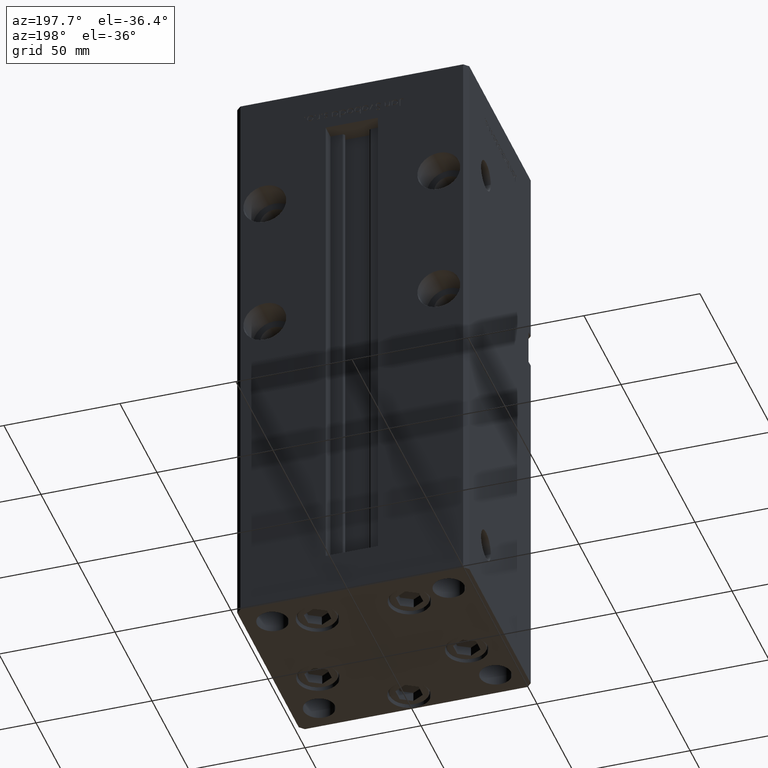
[diagram: clean part render]
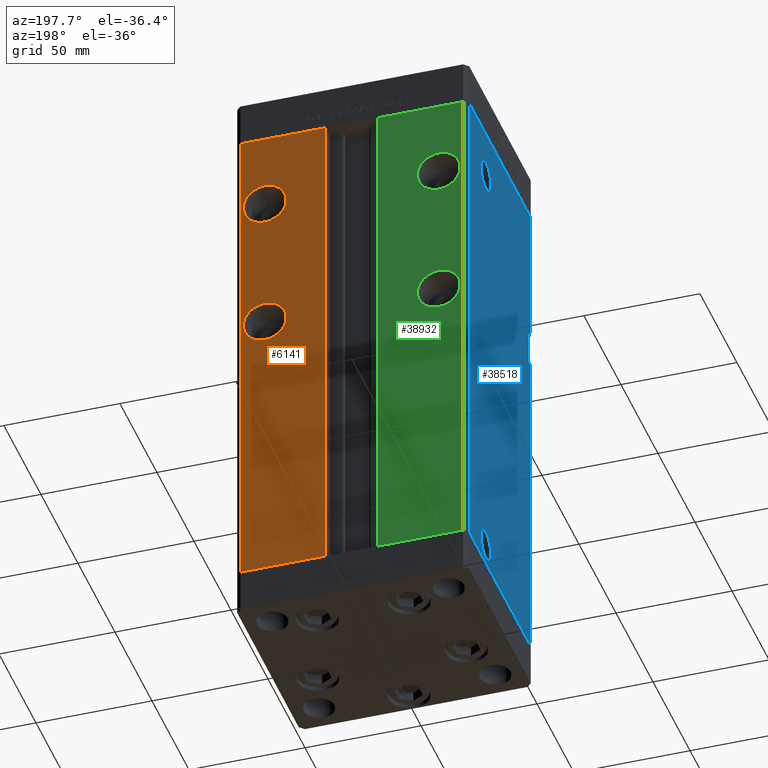
[diagram: same view with three faces highlighted in distinct colors, each labeled with its STEP entity id]
A machine part, auxiliary view with three faces highlighted in distinct colors.
Their STEP definitions:

[orange] entity #6141 — the highlighted planar face has unit normal (0, -1, 0).
#204 = VERTEX_POINT ( 'NONE', #4823 ) ;
#3257 = EDGE_CURVE ( 'NONE', #5187, #51631, #39915, .T. ) ;
#3793 = EDGE_CURVE ( 'NONE', #11528, #204, #39131, .T. ) ;
#4031 = ORIENTED_EDGE ( 'NONE', *, *, #3793, .F. ) ;
#4618 = CARTESIAN_POINT ( 'NONE',  ( 37.50000000000000000, 43.50000000000000000, 116.2499999999999858 ) ) ;
#4823 = CARTESIAN_POINT ( 'NONE',  ( 37.50000000000000000, 43.50000000000000000, 194.7500000000000000 ) ) ;
#5187 = VERTEX_POINT ( 'NONE', #40487 ) ;
#6141 = ADVANCED_FACE ( 'NONE', ( #15810, #12030, #40834 ), #15296, .F. ) ;
#6540 = ORIENTED_EDGE ( 'NONE', *, *, #18763, .F. ) ;
#6605 = DIRECTION ( 'NONE',  ( 0.000000000000000000, 1.000000000000000000, -0.000000000000000000 ) ) ;
#6859 = LINE ( 'NONE', #40466, #35290 ) ;
#7100 = CARTESIAN_POINT ( 'NONE',  ( 11.24999999999999645, 43.50000000000000000, 0.000000000000000000 ) ) ;
#7391 = DIRECTION ( 'NONE',  ( 0.000000000000000000, 0.000000000000000000, -1.000000000000000000 ) ) ;
#8201 = ORIENTED_EDGE ( 'NONE', *, *, #3257, .T. ) ;
#8392 = VECTOR ( 'NONE', #48374, 1000.000000000000000 ) ;
#9278 = ORIENTED_EDGE ( 'NONE', *, *, #18596, .T. ) ;
#11528 = VERTEX_POINT ( 'NONE', #46058 ) ;
#11682 = CARTESIAN_POINT ( 'NONE',  ( 37.50000000000000000, 43.50000000000000000, 125.5000000000000000 ) ) ;
#12030 = FACE_BOUND ( 'NONE', #12311, .T. ) ;
#12311 = EDGE_LOOP ( 'NONE', ( #6540, #4031 ) ) ;
#15296 = PLANE ( 'NONE',  #20281 ) ;
#15810 = FACE_BOUND ( 'NONE', #44239, .T. ) ;
#16436 = EDGE_CURVE ( 'NONE', #21189, #5187, #44070, .T. ) ;
#16794 = CARTESIAN_POINT ( 'NONE',  ( 48.00000000000000711, 43.50000000000000000, 218.5000000000000000 ) ) ;
#17640 = AXIS2_PLACEMENT_3D ( 'NONE', #17673, #26559, #34101 ) ;
#17673 = CARTESIAN_POINT ( 'NONE',  ( 37.50000000000000000, 43.50000000000000000, 185.5000000000000000 ) ) ;
#18596 = EDGE_CURVE ( 'NONE', #40396, #21189, #34165, .T. ) ;
#18763 = EDGE_CURVE ( 'NONE', #204, #11528, #29110, .T. ) ;
#18939 = DIRECTION ( 'NONE',  ( -1.000000000000000000, 0.000000000000000000, 0.000000000000000000 ) ) ;
#19339 = DIRECTION ( 'NONE',  ( 0.000000000000000000, -1.000000000000000000, 0.000000000000000000 ) ) ;
#20281 = AXIS2_PLACEMENT_3D ( 'NONE', #27680, #19339, #44089 ) ;
#21189 = VERTEX_POINT ( 'NONE', #16794 ) ;
#23021 = CARTESIAN_POINT ( 'NONE',  ( 37.50000000000000000, 43.50000000000000000, 125.5000000000000000 ) ) ;
#23068 = EDGE_CURVE ( 'NONE', #51631, #40396, #6859, .T. ) ;
#23284 = DIRECTION ( 'NONE',  ( -0.000000000000000000, -0.000000000000000000, 1.000000000000000000 ) ) ;
#23573 = EDGE_LOOP ( 'NONE', ( #8201, #44775, #9278, #34725 ) ) ;
#24811 = CARTESIAN_POINT ( 'NONE',  ( 11.24999999999998934, 43.50000000000000000, 218.5000000000000000 ) ) ;
#26559 = DIRECTION ( 'NONE',  ( 0.000000000000000000, 1.000000000000000000, 0.000000000000000000 ) ) ;
#27275 = DIRECTION ( 'NONE',  ( 0.000000000000000000, 0.000000000000000000, 1.000000000000000000 ) ) ;
#27680 = CARTESIAN_POINT ( 'NONE',  ( -11.24999999999999645, 43.50000000000000000, 218.5000000000000000 ) ) ;
#27843 = DIRECTION ( 'NONE',  ( 0.000000000000000000, 1.000000000000000000, -0.000000000000000000 ) ) ;
#29110 = CIRCLE ( 'NONE', #49747, 9.250000000000008882 ) ;
#29351 = CARTESIAN_POINT ( 'NONE',  ( 37.50000000000000000, 43.50000000000000000, 134.7500000000000000 ) ) ;
#31141 = ORIENTED_EDGE ( 'NONE', *, *, #47530, .F. ) ;
#31707 = VECTOR ( 'NONE', #50586, 1000.000000000000000 ) ;
#32951 = CIRCLE ( 'NONE', #44138, 9.250000000000008882 ) ;
#33302 = ORIENTED_EDGE ( 'NONE', *, *, #37837, .F. ) ;
#34101 = DIRECTION ( 'NONE',  ( 0.000000000000000000, 0.000000000000000000, 1.000000000000000000 ) ) ;
#34165 = LINE ( 'NONE', #41953, #31707 ) ;
#34725 = ORIENTED_EDGE ( 'NONE', *, *, #16436, .T. ) ;
#35290 = VECTOR ( 'NONE', #23284, 1000.000000000000000 ) ;
#37837 = EDGE_CURVE ( 'NONE', #45948, #50871, #42099, .T. ) ;
#39131 = CIRCLE ( 'NONE', #17640, 9.250000000000008882 ) ;
#39540 = AXIS2_PLACEMENT_3D ( 'NONE', #11682, #6605, #51817 ) ;
#39652 = CARTESIAN_POINT ( 'NONE',  ( 37.50000000000000000, 43.50000000000000000, 185.5000000000000000 ) ) ;
#39915 = LINE ( 'NONE', #52286, #44229 ) ;
#40396 = VERTEX_POINT ( 'NONE', #24811 ) ;
#40466 = CARTESIAN_POINT ( 'NONE',  ( 11.24999999999999645, 43.50000000000000000, 0.000000000000000000 ) ) ;
#40487 = CARTESIAN_POINT ( 'NONE',  ( 48.00000000000000711, 43.50000000000000000, 0.000000000000000000 ) ) ;
#40834 = FACE_OUTER_BOUND ( 'NONE', #23573, .T. ) ;
#41953 = CARTESIAN_POINT ( 'NONE',  ( -11.24999999999999645, 43.50000000000000000, 218.5000000000000000 ) ) ;
#42099 = CIRCLE ( 'NONE', #39540, 9.250000000000008882 ) ;
#43688 = DIRECTION ( 'NONE',  ( 0.000000000000000000, 1.000000000000000000, 0.000000000000000000 ) ) ;
#44070 = LINE ( 'NONE', #52398, #8392 ) ;
#44089 = DIRECTION ( 'NONE',  ( 0.000000000000000000, -0.000000000000000000, -1.000000000000000000 ) ) ;
#44138 = AXIS2_PLACEMENT_3D ( 'NONE', #23021, #27843, #7391 ) ;
#44229 = VECTOR ( 'NONE', #18939, 1000.000000000000000 ) ;
#44239 = EDGE_LOOP ( 'NONE', ( #33302, #31141 ) ) ;
#44775 = ORIENTED_EDGE ( 'NONE', *, *, #23068, .T. ) ;
#45948 = VERTEX_POINT ( 'NONE', #29351 ) ;
#46058 = CARTESIAN_POINT ( 'NONE',  ( 37.50000000000000000, 43.50000000000000000, 176.2500000000000000 ) ) ;
#47530 = EDGE_CURVE ( 'NONE', #50871, #45948, #32951, .T. ) ;
#48374 = DIRECTION ( 'NONE',  ( -0.000000000000000000, -0.000000000000000000, -1.000000000000000000 ) ) ;
#49747 = AXIS2_PLACEMENT_3D ( 'NONE', #39652, #43688, #27275 ) ;
#50586 = DIRECTION ( 'NONE',  ( 1.000000000000000000, 0.000000000000000000, 0.000000000000000000 ) ) ;
#50871 = VERTEX_POINT ( 'NONE', #4618 ) ;
#51631 = VERTEX_POINT ( 'NONE', #7100 ) ;
#51817 = DIRECTION ( 'NONE',  ( 0.000000000000000000, 0.000000000000000000, -1.000000000000000000 ) ) ;
#52286 = CARTESIAN_POINT ( 'NONE',  ( -11.24999999999999645, 43.50000000000000000, 0.000000000000000000 ) ) ;
#52398 = CARTESIAN_POINT ( 'NONE',  ( 48.00000000000000711, 43.50000000000000000, 218.5000000000000000 ) ) ;

[blue] entity #38518 — the highlighted planar face has unit normal (1, 0, 0).
#487 = LINE ( 'NONE', #747, #9442 ) ;
#652 = EDGE_CURVE ( 'NONE', #23395, #46189, #2066, .T. ) ;
#747 = CARTESIAN_POINT ( 'NONE',  ( -50.00000000000001421, 41.49999999999999289, 218.5000000000000000 ) ) ;
#1872 = CARTESIAN_POINT ( 'NONE',  ( -50.00000000000000711, 12.41999999999998394, 197.5000000000000000 ) ) ;
#2050 = DIRECTION ( 'NONE',  ( 0.000000000000000000, -1.000000000000000000, 0.000000000000000000 ) ) ;
#2066 = LINE ( 'NONE', #26832, #5466 ) ;
#2232 = ORIENTED_EDGE ( 'NONE', *, *, #11053, .T. ) ;
#2253 = CARTESIAN_POINT ( 'NONE',  ( -49.99999999999998579, -38.50000000000000000, 143.0000000000000284 ) ) ;
#2844 = FACE_OUTER_BOUND ( 'NONE', #46095, .T. ) ;
#3796 = ORIENTED_EDGE ( 'NONE', *, *, #13602, .F. ) ;
#5466 = VECTOR ( 'NONE', #18482, 1000.000000000000000 ) ;
#5487 = VECTOR ( 'NONE', #23833, 1000.000000000000000 ) ;
#5756 = CARTESIAN_POINT ( 'NONE',  ( -50.00000000000001421, 41.49999999999999289, 0.000000000000000000 ) ) ;
#6100 = VECTOR ( 'NONE', #27619, 1000.000000000000000 ) ;
#6103 = VERTEX_POINT ( 'NONE', #1872 ) ;
#6484 = DIRECTION ( 'NONE',  ( -1.000000000000000000, -2.275047181608927644E-16, 0.000000000000000000 ) ) ;
#6547 = VECTOR ( 'NONE', #21968, 1000.000000000000000 ) ;
#6675 = LINE ( 'NONE', #23093, #38781 ) ;
#6876 = CARTESIAN_POINT ( 'NONE',  ( -50.00000000000001421, 41.49999999999999289, 218.5000000000000000 ) ) ;
#6978 = VERTEX_POINT ( 'NONE', #52435 ) ;
#7062 = VERTEX_POINT ( 'NONE', #10423 ) ;
#7253 = CARTESIAN_POINT ( 'NONE',  ( -49.99999999999998579, -41.49999999999999289, 158.0000000000000000 ) ) ;
#8320 = AXIS2_PLACEMENT_3D ( 'NONE', #48031, #11148, #19496 ) ;
#8859 = CARTESIAN_POINT ( 'NONE',  ( -50.00000000000000711, 19.00000000000000000, 9.000000000000007105 ) ) ;
#9442 = VECTOR ( 'NONE', #24703, 1000.000000000000000 ) ;
#10423 = CARTESIAN_POINT ( 'NONE',  ( -50.00000000000000711, 12.41999999999999638, 9.000000000000007105 ) ) ;
#11024 = AXIS2_PLACEMENT_3D ( 'NONE', #43358, #6484, #45665 ) ;
#11053 = EDGE_CURVE ( 'NONE', #13260, #23420, #50769, .T. ) ;
#11148 = DIRECTION ( 'NONE',  ( -1.000000000000000000, -2.275047181608927644E-16, 0.000000000000000000 ) ) ;
#11292 = CARTESIAN_POINT ( 'NONE',  ( -50.00000000000001421, 41.49999999999999289, 218.5000000000000000 ) ) ;
#11394 = ORIENTED_EDGE ( 'NONE', *, *, #48001, .F. ) ;
#11845 = VERTEX_POINT ( 'NONE', #42148 ) ;
#12242 = VERTEX_POINT ( 'NONE', #5756 ) ;
#13260 = VERTEX_POINT ( 'NONE', #14994 ) ;
#13524 = CARTESIAN_POINT ( 'NONE',  ( -50.00000000000000711, 25.58000000000001606, 197.5000000000000000 ) ) ;
#13602 = EDGE_CURVE ( 'NONE', #25298, #6103, #17790, .T. ) ;
#14293 = EDGE_LOOP ( 'NONE', ( #47261, #48030 ) ) ;
#14523 = CARTESIAN_POINT ( 'NONE',  ( -50.00000000000001421, 41.49999999999999289, 0.000000000000000000 ) ) ;
#14994 = CARTESIAN_POINT ( 'NONE',  ( -49.99999999999998579, -38.50000000000000000, 158.0000000000000000 ) ) ;
#15230 = LINE ( 'NONE', #23046, #5487 ) ;
#17351 = EDGE_CURVE ( 'NONE', #6978, #7062, #43723, .T. ) ;
#17595 = EDGE_CURVE ( 'NONE', #6103, #25298, #24769, .T. ) ;
#17790 = CIRCLE ( 'NONE', #8320, 6.580000000000016058 ) ;
#18482 = DIRECTION ( 'NONE',  ( 3.344045254895050973E-16, -1.000000000000000000, 0.000000000000000000 ) ) ;
#18751 = VERTEX_POINT ( 'NONE', #2253 ) ;
#19255 = DIRECTION ( 'NONE',  ( -3.344045254895050480E-16, 1.000000000000000000, 0.000000000000000000 ) ) ;
#19496 = DIRECTION ( 'NONE',  ( 0.000000000000000000, -1.000000000000000000, 0.000000000000000000 ) ) ;
#21521 = AXIS2_PLACEMENT_3D ( 'NONE', #8859, #37662, #26086 ) ;
#21745 = EDGE_CURVE ( 'NONE', #23395, #12242, #487, .T. ) ;
#21968 = DIRECTION ( 'NONE',  ( -0.000000000000000000, -1.000000000000000000, -0.000000000000000000 ) ) ;
#22213 = AXIS2_PLACEMENT_3D ( 'NONE', #34092, #38922, #2050 ) ;
#22335 = DIRECTION ( 'NONE',  ( 3.344045254895050973E-16, -1.000000000000000000, 0.000000000000000000 ) ) ;
#22636 = DIRECTION ( 'NONE',  ( 0.000000000000000000, 0.000000000000000000, -1.000000000000000000 ) ) ;
#23046 = CARTESIAN_POINT ( 'NONE',  ( -49.99999999999998579, -41.49999999999999289, 218.5000000000000000 ) ) ;
#23093 = CARTESIAN_POINT ( 'NONE',  ( -49.99999999999998579, -41.49999999999999289, 218.5000000000000000 ) ) ;
#23395 = VERTEX_POINT ( 'NONE', #11292 ) ;
#23420 = VERTEX_POINT ( 'NONE', #7253 ) ;
#23584 = ORIENTED_EDGE ( 'NONE', *, *, #29270, .F. ) ;
#23833 = DIRECTION ( 'NONE',  ( -0.000000000000000000, -0.000000000000000000, -1.000000000000000000 ) ) ;
#24536 = EDGE_CURVE ( 'NONE', #12242, #35456, #35780, .T. ) ;
#24703 = DIRECTION ( 'NONE',  ( -0.000000000000000000, -0.000000000000000000, -1.000000000000000000 ) ) ;
#24769 = CIRCLE ( 'NONE', #22213, 6.580000000000016058 ) ;
#25298 = VERTEX_POINT ( 'NONE', #13524 ) ;
#26000 = CARTESIAN_POINT ( 'NONE',  ( -49.99999999999998579, -41.49999999999999289, 0.000000000000000000 ) ) ;
#26086 = DIRECTION ( 'NONE',  ( 0.000000000000000000, -1.000000000000000000, 0.000000000000000000 ) ) ;
#26832 = CARTESIAN_POINT ( 'NONE',  ( -50.00000000000001421, 41.49999999999999289, 218.5000000000000000 ) ) ;
#27337 = FACE_BOUND ( 'NONE', #14293, .T. ) ;
#27619 = DIRECTION ( 'NONE',  ( -0.000000000000000000, -1.000000000000000000, -0.000000000000000000 ) ) ;
#27813 = VECTOR ( 'NONE', #22636, 1000.000000000000000 ) ;
#28406 = EDGE_LOOP ( 'NONE', ( #46100, #3796 ) ) ;
#29270 = EDGE_CURVE ( 'NONE', #18751, #11845, #31660, .T. ) ;
#31660 = LINE ( 'NONE', #48072, #6100 ) ;
#33985 = ORIENTED_EDGE ( 'NONE', *, *, #21745, .T. ) ;
#34092 = CARTESIAN_POINT ( 'NONE',  ( -50.00000000000000711, 19.00000000000000000, 197.5000000000000000 ) ) ;
#34396 = ORIENTED_EDGE ( 'NONE', *, *, #24536, .T. ) ;
#34489 = CARTESIAN_POINT ( 'NONE',  ( -49.99999999999998579, -38.50000000000000000, 158.0000000000000000 ) ) ;
#35211 = VECTOR ( 'NONE', #22335, 1000.000000000000000 ) ;
#35456 = VERTEX_POINT ( 'NONE', #26000 ) ;
#35780 = LINE ( 'NONE', #14523, #35211 ) ;
#35911 = EDGE_CURVE ( 'NONE', #11845, #35456, #6675, .T. ) ;
#37662 = DIRECTION ( 'NONE',  ( -1.000000000000000000, -2.275047181608927644E-16, 0.000000000000000000 ) ) ;
#38518 = ADVANCED_FACE ( 'NONE', ( #2844, #27337, #40226 ), #43749, .F. ) ;
#38721 = DIRECTION ( 'NONE',  ( -0.000000000000000000, -0.000000000000000000, -1.000000000000000000 ) ) ;
#38781 = VECTOR ( 'NONE', #38721, 1000.000000000000000 ) ;
#38922 = DIRECTION ( 'NONE',  ( -1.000000000000000000, -2.275047181608927644E-16, 0.000000000000000000 ) ) ;
#39445 = EDGE_CURVE ( 'NONE', #7062, #6978, #44706, .T. ) ;
#39713 = DIRECTION ( 'NONE',  ( 1.000000000000000000, 3.344045254895050480E-16, -0.000000000000000000 ) ) ;
#40226 = FACE_BOUND ( 'NONE', #28406, .T. ) ;
#40827 = ORIENTED_EDGE ( 'NONE', *, *, #49055, .F. ) ;
#42148 = CARTESIAN_POINT ( 'NONE',  ( -49.99999999999998579, -41.49999999999999289, 143.0000000000000284 ) ) ;
#43358 = CARTESIAN_POINT ( 'NONE',  ( -50.00000000000000711, 19.00000000000000000, 9.000000000000007105 ) ) ;
#43723 = CIRCLE ( 'NONE', #11024, 6.580000000000002736 ) ;
#43749 = PLANE ( 'NONE',  #51577 ) ;
#44621 = CARTESIAN_POINT ( 'NONE',  ( -49.99999999999998579, -41.49999999999999289, 218.5000000000000000 ) ) ;
#44706 = CIRCLE ( 'NONE', #21521, 6.580000000000002736 ) ;
#45665 = DIRECTION ( 'NONE',  ( 0.000000000000000000, -1.000000000000000000, 0.000000000000000000 ) ) ;
#46095 = EDGE_LOOP ( 'NONE', ( #48153, #23584, #11394, #2232, #40827, #49788, #33985, #34396 ) ) ;
#46100 = ORIENTED_EDGE ( 'NONE', *, *, #17595, .F. ) ;
#46189 = VERTEX_POINT ( 'NONE', #44621 ) ;
#47261 = ORIENTED_EDGE ( 'NONE', *, *, #39445, .F. ) ;
#48001 = EDGE_CURVE ( 'NONE', #13260, #18751, #50906, .T. ) ;
#48030 = ORIENTED_EDGE ( 'NONE', *, *, #17351, .F. ) ;
#48031 = CARTESIAN_POINT ( 'NONE',  ( -50.00000000000000711, 19.00000000000000000, 197.5000000000000000 ) ) ;
#48072 = CARTESIAN_POINT ( 'NONE',  ( -49.99999999999998579, -38.50000000000000000, 143.0000000000000284 ) ) ;
#48153 = ORIENTED_EDGE ( 'NONE', *, *, #35911, .F. ) ;
#49055 = EDGE_CURVE ( 'NONE', #46189, #23420, #15230, .T. ) ;
#49788 = ORIENTED_EDGE ( 'NONE', *, *, #652, .F. ) ;
#50769 = LINE ( 'NONE', #51037, #6547 ) ;
#50906 = LINE ( 'NONE', #34489, #27813 ) ;
#51037 = CARTESIAN_POINT ( 'NONE',  ( -49.99999999999998579, -38.50000000000000000, 158.0000000000000000 ) ) ;
#51577 = AXIS2_PLACEMENT_3D ( 'NONE', #6876, #39713, #19255 ) ;
#52435 = CARTESIAN_POINT ( 'NONE',  ( -50.00000000000000711, 25.58000000000000185, 9.000000000000007105 ) ) ;

[green] entity #38932 — the highlighted planar face has unit normal (0, -1, 0).
#49 = AXIS2_PLACEMENT_3D ( 'NONE', #22587, #2127, #24808 ) ;
#1602 = EDGE_LOOP ( 'NONE', ( #50748, #27236, #17110, #28948 ) ) ;
#1619 = DIRECTION ( 'NONE',  ( 1.000000000000000000, 0.000000000000000000, 0.000000000000000000 ) ) ;
#2127 = DIRECTION ( 'NONE',  ( 0.000000000000000000, 1.000000000000000000, 0.000000000000000000 ) ) ;
#3159 = CARTESIAN_POINT ( 'NONE',  ( -48.00000000000000711, 43.50000000000000000, 0.000000000000000000 ) ) ;
#4101 = VERTEX_POINT ( 'NONE', #27810 ) ;
#4338 = DIRECTION ( 'NONE',  ( 0.000000000000000000, -0.000000000000000000, -1.000000000000000000 ) ) ;
#4557 = LINE ( 'NONE', #17476, #19700 ) ;
#6144 = CARTESIAN_POINT ( 'NONE',  ( -37.50000000000000000, 43.50000000000000000, 116.2499999999999858 ) ) ;
#6700 = CARTESIAN_POINT ( 'NONE',  ( -48.00000000000000711, 43.50000000000000000, 218.5000000000000000 ) ) ;
#6797 = CARTESIAN_POINT ( 'NONE',  ( -37.50000000000000000, 43.50000000000000000, 185.5000000000000000 ) ) ;
#7700 = LINE ( 'NONE', #24125, #34872 ) ;
#8090 = EDGE_LOOP ( 'NONE', ( #44828, #26167 ) ) ;
#8376 = FACE_OUTER_BOUND ( 'NONE', #1602, .T. ) ;
#8546 = CIRCLE ( 'NONE', #28326, 9.250000000000008882 ) ;
#8719 = EDGE_CURVE ( 'NONE', #20855, #29485, #41982, .T. ) ;
#9092 = EDGE_CURVE ( 'NONE', #38809, #29485, #7700, .T. ) ;
#9536 = DIRECTION ( 'NONE',  ( 0.000000000000000000, 1.000000000000000000, -0.000000000000000000 ) ) ;
#10683 = VECTOR ( 'NONE', #50869, 1000.000000000000000 ) ;
#11210 = CIRCLE ( 'NONE', #49, 9.250000000000008882 ) ;
#12012 = CIRCLE ( 'NONE', #42103, 9.250000000000008882 ) ;
#12388 = CARTESIAN_POINT ( 'NONE',  ( -11.24999999999999645, 43.50000000000000000, 218.5000000000000000 ) ) ;
#13191 = CARTESIAN_POINT ( 'NONE',  ( -11.24999999999999645, 43.50000000000000000, 218.5000000000000000 ) ) ;
#15194 = VERTEX_POINT ( 'NONE', #6144 ) ;
#16167 = DIRECTION ( 'NONE',  ( 0.000000000000000000, 0.000000000000000000, -1.000000000000000000 ) ) ;
#17110 = ORIENTED_EDGE ( 'NONE', *, *, #20707, .T. ) ;
#17237 = AXIS2_PLACEMENT_3D ( 'NONE', #29184, #9536, #25153 ) ;
#17476 = CARTESIAN_POINT ( 'NONE',  ( -11.24999999999999645, 43.50000000000000000, 0.000000000000000000 ) ) ;
#19308 = CARTESIAN_POINT ( 'NONE',  ( -37.50000000000000000, 43.50000000000000000, 134.7500000000000000 ) ) ;
#19700 = VECTOR ( 'NONE', #37943, 1000.000000000000000 ) ;
#20234 = PLANE ( 'NONE',  #30139 ) ;
#20707 = EDGE_CURVE ( 'NONE', #38809, #43852, #4557, .T. ) ;
#20855 = VERTEX_POINT ( 'NONE', #6700 ) ;
#21050 = ORIENTED_EDGE ( 'NONE', *, *, #28767, .F. ) ;
#22587 = CARTESIAN_POINT ( 'NONE',  ( -37.50000000000000000, 43.50000000000000000, 125.5000000000000000 ) ) ;
#24125 = CARTESIAN_POINT ( 'NONE',  ( -11.24999999999999645, 43.50000000000000000, 0.000000000000000000 ) ) ;
#24797 = FACE_BOUND ( 'NONE', #8090, .T. ) ;
#24808 = DIRECTION ( 'NONE',  ( 0.000000000000000000, 0.000000000000000000, 1.000000000000000000 ) ) ;
#25153 = DIRECTION ( 'NONE',  ( 0.000000000000000000, 0.000000000000000000, -1.000000000000000000 ) ) ;
#25855 = CIRCLE ( 'NONE', #17237, 9.250000000000008882 ) ;
#26129 = EDGE_CURVE ( 'NONE', #37066, #4101, #8546, .T. ) ;
#26167 = ORIENTED_EDGE ( 'NONE', *, *, #28403, .F. ) ;
#26257 = VECTOR ( 'NONE', #1619, 1000.000000000000000 ) ;
#27236 = ORIENTED_EDGE ( 'NONE', *, *, #9092, .F. ) ;
#27810 = CARTESIAN_POINT ( 'NONE',  ( -37.50000000000000000, 43.50000000000000000, 176.2500000000000000 ) ) ;
#28326 = AXIS2_PLACEMENT_3D ( 'NONE', #6797, #40403, #16167 ) ;
#28403 = EDGE_CURVE ( 'NONE', #4101, #37066, #25855, .T. ) ;
#28422 = DIRECTION ( 'NONE',  ( -0.000000000000000000, -0.000000000000000000, 1.000000000000000000 ) ) ;
#28767 = EDGE_CURVE ( 'NONE', #15194, #30955, #11210, .T. ) ;
#28948 = ORIENTED_EDGE ( 'NONE', *, *, #49789, .F. ) ;
#29184 = CARTESIAN_POINT ( 'NONE',  ( -37.50000000000000000, 43.50000000000000000, 185.5000000000000000 ) ) ;
#29485 = VERTEX_POINT ( 'NONE', #12388 ) ;
#30139 = AXIS2_PLACEMENT_3D ( 'NONE', #36389, #45525, #4338 ) ;
#30243 = CARTESIAN_POINT ( 'NONE',  ( -37.50000000000000000, 43.50000000000000000, 194.7500000000000000 ) ) ;
#30955 = VERTEX_POINT ( 'NONE', #19308 ) ;
#31062 = CARTESIAN_POINT ( 'NONE',  ( -11.24999999999999645, 43.50000000000000000, 0.000000000000000000 ) ) ;
#31210 = CARTESIAN_POINT ( 'NONE',  ( -48.00000000000000711, 43.50000000000000000, 218.5000000000000000 ) ) ;
#34395 = EDGE_CURVE ( 'NONE', #30955, #15194, #12012, .T. ) ;
#34872 = VECTOR ( 'NONE', #28422, 1000.000000000000000 ) ;
#35733 = CARTESIAN_POINT ( 'NONE',  ( -37.50000000000000000, 43.50000000000000000, 125.5000000000000000 ) ) ;
#36389 = CARTESIAN_POINT ( 'NONE',  ( -11.24999999999999645, 43.50000000000000000, 218.5000000000000000 ) ) ;
#37066 = VERTEX_POINT ( 'NONE', #30243 ) ;
#37943 = DIRECTION ( 'NONE',  ( -1.000000000000000000, 0.000000000000000000, 0.000000000000000000 ) ) ;
#38672 = ORIENTED_EDGE ( 'NONE', *, *, #34395, .F. ) ;
#38809 = VERTEX_POINT ( 'NONE', #31062 ) ;
#38932 = ADVANCED_FACE ( 'NONE', ( #24797, #45256, #8376 ), #20234, .F. ) ;
#40403 = DIRECTION ( 'NONE',  ( 0.000000000000000000, 1.000000000000000000, -0.000000000000000000 ) ) ;
#41982 = LINE ( 'NONE', #13191, #26257 ) ;
#42103 = AXIS2_PLACEMENT_3D ( 'NONE', #35733, #48098, #45296 ) ;
#43415 = EDGE_LOOP ( 'NONE', ( #38672, #21050 ) ) ;
#43852 = VERTEX_POINT ( 'NONE', #3159 ) ;
#44828 = ORIENTED_EDGE ( 'NONE', *, *, #26129, .F. ) ;
#45256 = FACE_BOUND ( 'NONE', #43415, .T. ) ;
#45296 = DIRECTION ( 'NONE',  ( 0.000000000000000000, 0.000000000000000000, 1.000000000000000000 ) ) ;
#45525 = DIRECTION ( 'NONE',  ( 0.000000000000000000, -1.000000000000000000, 0.000000000000000000 ) ) ;
#48098 = DIRECTION ( 'NONE',  ( 0.000000000000000000, 1.000000000000000000, 0.000000000000000000 ) ) ;
#49789 = EDGE_CURVE ( 'NONE', #20855, #43852, #51133, .T. ) ;
#50748 = ORIENTED_EDGE ( 'NONE', *, *, #8719, .T. ) ;
#50869 = DIRECTION ( 'NONE',  ( -0.000000000000000000, -0.000000000000000000, -1.000000000000000000 ) ) ;
#51133 = LINE ( 'NONE', #31210, #10683 ) ;